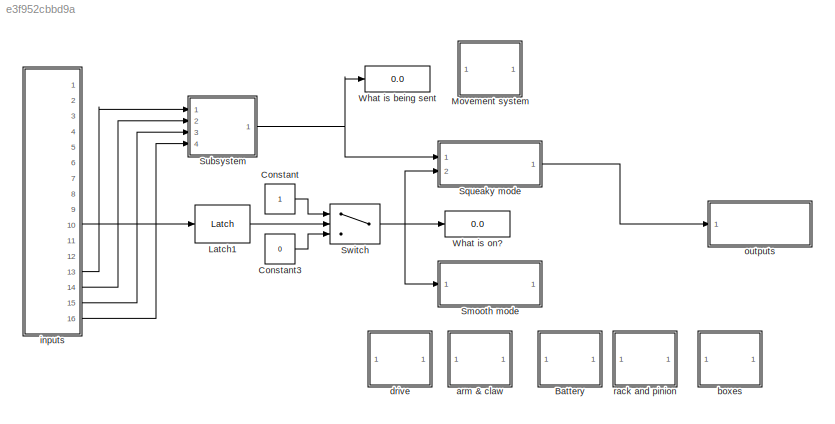
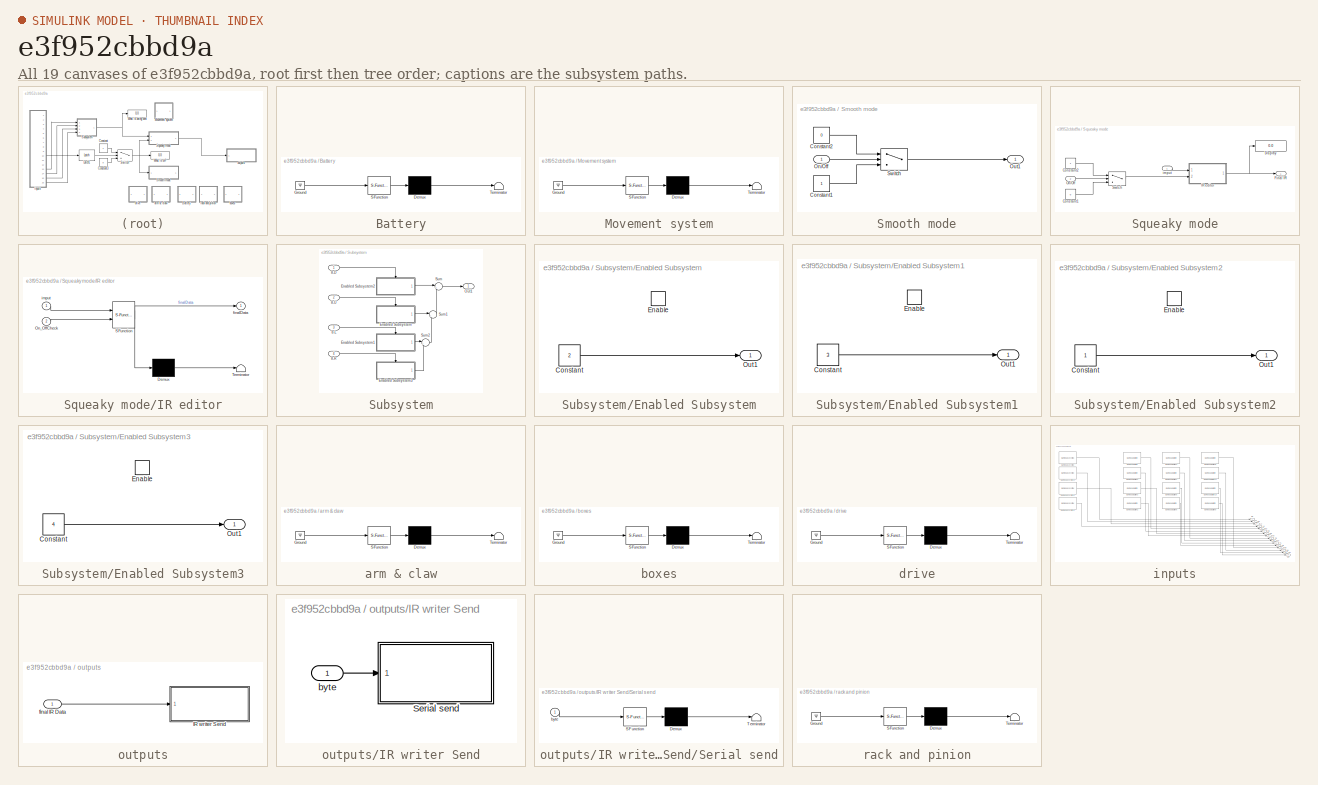
[diagram: thumbnail index - all 19 canvases of the model, root first then tree order]
MODEL slx_e3f952cbbd9a
KIND model
CONFIG AbsTol = auto
CONFIG EnableMultiTasking = off
CONFIG FixedStep = auto
CONFIG MaxStep = auto
CONFIG MinStep = auto
CONFIG RelTol = 1e-3
CONFIG SampleTimeConstraint = Unconstrained
CONFIG SolverName = VariableStepAuto
CONFIG StartTime = 0.0
CONFIG StopTime = 10.0
BLOCK [SubSystem] Battery
  ErrorFcn = Stateflow.Translate.translate
  PermitHierarchicalResolution = ExplicitOnly
  Ports = []
  RequestExecContextInheritance = off
  SFBlockType = Chart
  TreatAsAtomicUnit = on
BLOCK [Demux] Battery/ Demux 
  Outputs = 1
  Ports = [1, 1]
BLOCK [Ground] Battery/ Ground 
BLOCK [S-Function] Battery/ SFunction 
  EnableBusSupport = on
  FunctionName = sf_sfun
  PortCounts = [1 1]
  Ports = [1, 1]
  SFcnIsStateOwnerBlock = off
  SFunctionDeploymentMode = off
  Tag = Stateflow S-Function 7
BLOCK [Terminator] Battery/ Terminator 
BLOCK [Constant] Constant
BLOCK [Constant] Constant3
  Value = 0
BLOCK [Reference] Latch1  REF=RoboticsPlayground/Utilities and Hardware/Latch
  Ports = [1, 1]
  SourceBlock = RoboticsPlayground/Utilities and Hardware/Latch
  SourceProductName = Robotics Playground
BLOCK [SubSystem] Movement system
  ErrorFcn = Stateflow.Translate.translate
  PermitHierarchicalResolution = ExplicitOnly
  Ports = []
  RequestExecContextInheritance = off
  SFBlockType = Chart
  TreatAsAtomicUnit = on
BLOCK [Demux] Movement system/ Demux 
  Outputs = 1
  Ports = [1, 1]
BLOCK [Ground] Movement system/ Ground 
BLOCK [S-Function] Movement system/ SFunction 
  EnableBusSupport = on
  FunctionName = sf_sfun
  PortCounts = [1 1]
  Ports = [1, 1]
  SFcnIsStateOwnerBlock = off
  SFunctionDeploymentMode = off
  Tag = Stateflow S-Function 2
BLOCK [Terminator] Movement system/ Terminator 
BLOCK [SubSystem] Smooth mode
  Ports = [1, 1]
  RequestExecContextInheritance = off
BLOCK [Constant] Smooth mode/Constant1
BLOCK [Constant] Smooth mode/Constant2
  Value = 0
BLOCK [Inport] Smooth mode/On//Off
BLOCK [Outport] Smooth mode/Out1
BLOCK [Switch] Smooth mode/Switch
  Criteria = u2 > Threshold
  InputSameDT = off
  SaturateOnIntegerOverflow = off
BLOCK [SubSystem] Squeaky mode
  Ports = [2, 1]
  RequestExecContextInheritance = off
BLOCK [Constant] Squeaky mode/Constant1
  Value = 0
BLOCK [Constant] Squeaky mode/Constant2
BLOCK [Display] Squeaky mode/Display
  Decimation = 1
  Ports = [1]
BLOCK [Outport] Squeaky mode/Final IR
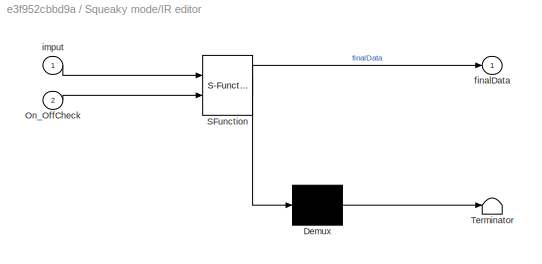
BLOCK [SubSystem] Squeaky mode/IR editor
  ErrorFcn = Stateflow.Translate.translate
  PermitHierarchicalResolution = ExplicitOnly
  Ports = [2, 1]
  RequestExecContextInheritance = off
  SFBlockType = Chart
  TreatAsAtomicUnit = on
BLOCK [Demux] Squeaky mode/IR editor/ Demux 
  Outputs = 1
  Ports = [1, 1]
BLOCK [S-Function] Squeaky mode/IR editor/ SFunction 
  EnableBusSupport = on
  FunctionName = sf_sfun
  PortCounts = [2 2]
  Ports = [2, 2]
  SFcnIsStateOwnerBlock = off
  SFunctionDeploymentMode = off
  Tag = Stateflow S-Function 10
BLOCK [Terminator] Squeaky mode/IR editor/ Terminator 
BLOCK [Inport] Squeaky mode/IR editor/On_OffCheck
  Port = 2
BLOCK [Outport] Squeaky mode/IR editor/finalData
BLOCK [Inport] Squeaky mode/IR editor/imput
BLOCK [Inport] Squeaky mode/On//Off
  Port = 2
BLOCK [Switch] Squeaky mode/Switch
  Criteria = u2 > Threshold
  InputSameDT = off
  SaturateOnIntegerOverflow = off
BLOCK [Inport] Squeaky mode/imput
BLOCK [SubSystem] Subsystem
  Ports = [4, 1]
  RequestExecContextInheritance = off
BLOCK [Inport] Subsystem/8-D
BLOCK [Inport] Subsystem/8-L
  Port = 3
BLOCK [Inport] Subsystem/8-R
  Port = 4
BLOCK [Inport] Subsystem/8-U
  Port = 2
BLOCK [SubSystem] Subsystem/Enabled Subsystem
  Ports = [0, 1, 1]
  RequestExecContextInheritance = off
  TreatAsAtomicUnit = on
BLOCK [Constant] Subsystem/Enabled Subsystem/Constant
  Value = 2
BLOCK [EnablePort] Subsystem/Enabled Subsystem/Enable
  Ports = []
BLOCK [Outport] Subsystem/Enabled Subsystem/Out1
BLOCK [SubSystem] Subsystem/Enabled Subsystem1
  Ports = [0, 1, 1]
  RequestExecContextInheritance = off
  TreatAsAtomicUnit = on
BLOCK [Constant] Subsystem/Enabled Subsystem1/Constant
  Value = 3
BLOCK [EnablePort] Subsystem/Enabled Subsystem1/Enable
  Ports = []
BLOCK [Outport] Subsystem/Enabled Subsystem1/Out1
BLOCK [SubSystem] Subsystem/Enabled Subsystem2
  Ports = [0, 1, 1]
  RequestExecContextInheritance = off
  TreatAsAtomicUnit = on
BLOCK [Constant] Subsystem/Enabled Subsystem2/Constant
BLOCK [EnablePort] Subsystem/Enabled Subsystem2/Enable
  Ports = []
BLOCK [Outport] Subsystem/Enabled Subsystem2/Out1
BLOCK [SubSystem] Subsystem/Enabled Subsystem3
  Ports = [0, 1, 1]
  RequestExecContextInheritance = off
  TreatAsAtomicUnit = on
BLOCK [Constant] Subsystem/Enabled Subsystem3/Constant
  Value = 4
BLOCK [EnablePort] Subsystem/Enabled Subsystem3/Enable
  Ports = []
BLOCK [Outport] Subsystem/Enabled Subsystem3/Out1
BLOCK [Outport] Subsystem/Out1
BLOCK [Sum] Subsystem/Sum
  Inputs = |++
  Ports = [2, 1]
BLOCK [Sum] Subsystem/Sum1
  Inputs = |++
  Ports = [2, 1]
BLOCK [Sum] Subsystem/Sum2
  Inputs = |++
  Ports = [2, 1]
BLOCK [Switch] Switch
  Criteria = u2 ~= 0
  InputSameDT = off
  SaturateOnIntegerOverflow = off
BLOCK [Display] What is being sent
  Decimation = 1
  Ports = [1]
BLOCK [Display] What is on?
  Decimation = 1
  Ports = [1]
BLOCK [SubSystem] arm & claw
  ErrorFcn = Stateflow.Translate.translate
  PermitHierarchicalResolution = ExplicitOnly
  Ports = []
  RequestExecContextInheritance = off
  SFBlockType = Chart
  TreatAsAtomicUnit = on
BLOCK [Demux] arm & claw/ Demux 
  Outputs = 1
  Ports = [1, 1]
BLOCK [Ground] arm & claw/ Ground 
BLOCK [S-Function] arm & claw/ SFunction 
  EnableBusSupport = on
  FunctionName = sf_sfun
  PortCounts = [1 1]
  Ports = [1, 1]
  SFcnIsStateOwnerBlock = off
  SFunctionDeploymentMode = off
  Tag = Stateflow S-Function 6
BLOCK [Terminator] arm & claw/ Terminator 
BLOCK [SubSystem] boxes
  ErrorFcn = Stateflow.Translate.translate
  PermitHierarchicalResolution = ExplicitOnly
  Ports = []
  RequestExecContextInheritance = off
  SFBlockType = Chart
  TreatAsAtomicUnit = on
BLOCK [Demux] boxes/ Demux 
  Outputs = 1
  Ports = [1, 1]
BLOCK [Ground] boxes/ Ground 
BLOCK [S-Function] boxes/ SFunction 
  EnableBusSupport = on
  FunctionName = sf_sfun
  PortCounts = [1 1]
  Ports = [1, 1]
  SFcnIsStateOwnerBlock = off
  SFunctionDeploymentMode = off
  Tag = Stateflow S-Function 9
BLOCK [Terminator] boxes/ Terminator 
BLOCK [SubSystem] drive
  ErrorFcn = Stateflow.Translate.translate
  PermitHierarchicalResolution = ExplicitOnly
  Ports = []
  RequestExecContextInheritance = off
  SFBlockType = Chart
  TreatAsAtomicUnit = on
BLOCK [Demux] drive/ Demux 
  Outputs = 1
  Ports = [1, 1]
BLOCK [Ground] drive/ Ground 
BLOCK [S-Function] drive/ SFunction 
  EnableBusSupport = on
  FunctionName = sf_sfun
  PortCounts = [1 1]
  Ports = [1, 1]
  SFcnIsStateOwnerBlock = off
  SFunctionDeploymentMode = off
  Tag = Stateflow S-Function 5
BLOCK [Terminator] drive/ Terminator 
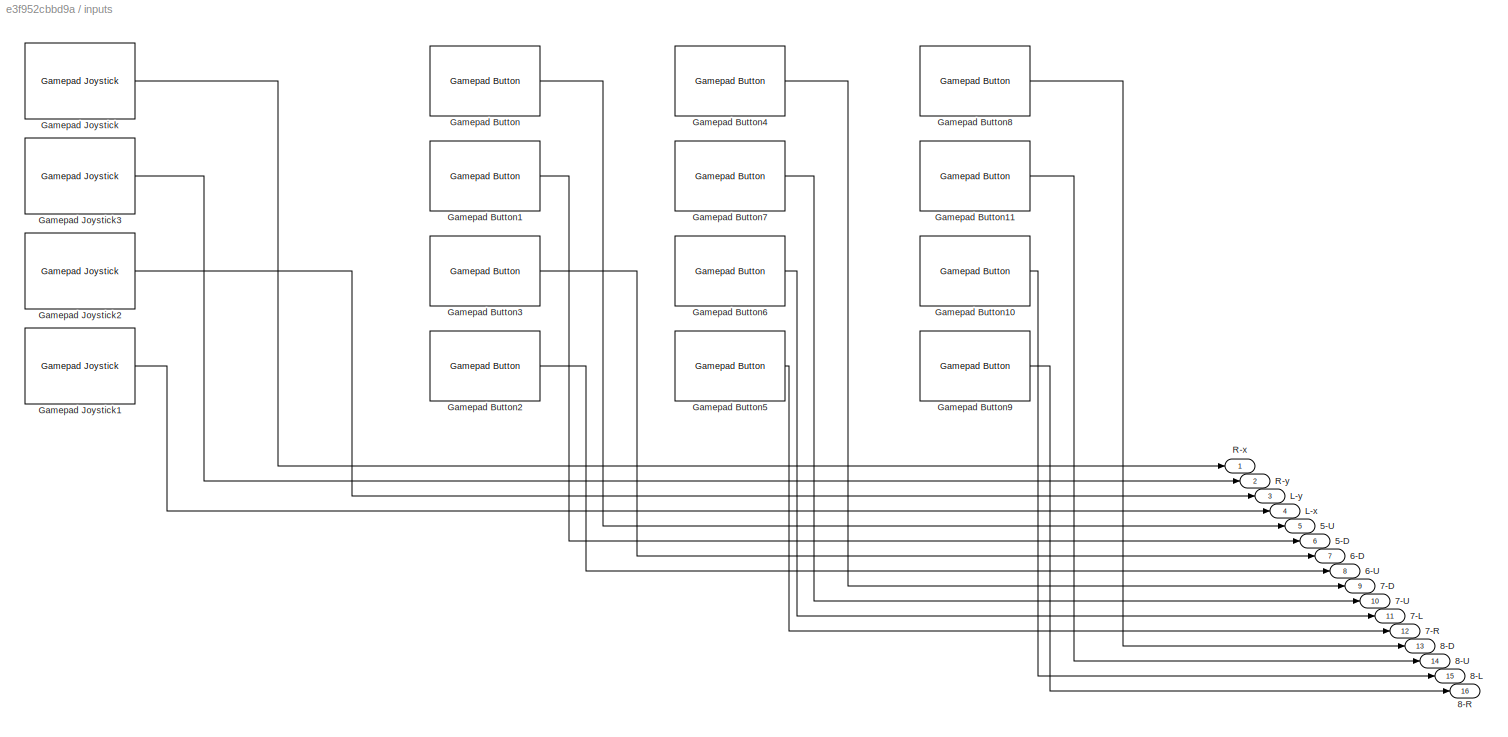
BLOCK [SubSystem] inputs
  Ports = [0, 16]
  RequestExecContextInheritance = off
BLOCK [Outport] inputs/5-D
  Port = 6
BLOCK [Outport] inputs/5-U
  Port = 5
BLOCK [Outport] inputs/6-D
  Port = 7
BLOCK [Outport] inputs/6-U
  Port = 8
BLOCK [Outport] inputs/7-D
  Port = 9
BLOCK [Outport] inputs/7-L
  Port = 11
BLOCK [Outport] inputs/7-R
  Port = 12
BLOCK [Outport] inputs/7-U
  Port = 10
BLOCK [Outport] inputs/8-D
  Port = 13
BLOCK [Outport] inputs/8-L
  Port = 15
BLOCK [Outport] inputs/8-R
  Port = 16
BLOCK [Outport] inputs/8-U
  Port = 14
BLOCK [Reference] inputs/Gamepad Button  REF=vexarmcortexlib/Gamepad/Gamepad Button
  Ports = [0, 1]
  SourceBlock = vexarmcortexlib/Gamepad/Gamepad Button
  SourceProductBaseCode = EC_VEX_MICRO
  SourceType = Gamepad Button
BLOCK [Reference] inputs/Gamepad Button1  REF=vexarmcortexlib/Gamepad/Gamepad Button
  Ports = [0, 1]
  SourceBlock = vexarmcortexlib/Gamepad/Gamepad Button
  SourceProductBaseCode = EC_VEX_MICRO
  SourceType = Gamepad Button
BLOCK [Reference] inputs/Gamepad Button10  REF=vexarmcortexlib/Gamepad/Gamepad Button
  Ports = [0, 1]
  SourceBlock = vexarmcortexlib/Gamepad/Gamepad Button
  SourceProductBaseCode = EC_VEX_MICRO
  SourceType = Gamepad Button
BLOCK [Reference] inputs/Gamepad Button11  REF=vexarmcortexlib/Gamepad/Gamepad Button
  Ports = [0, 1]
  SourceBlock = vexarmcortexlib/Gamepad/Gamepad Button
  SourceProductBaseCode = EC_VEX_MICRO
  SourceType = Gamepad Button
BLOCK [Reference] inputs/Gamepad Button2  REF=vexarmcortexlib/Gamepad/Gamepad Button
  Ports = [0, 1]
  SourceBlock = vexarmcortexlib/Gamepad/Gamepad Button
  SourceProductBaseCode = EC_VEX_MICRO
  SourceType = Gamepad Button
BLOCK [Reference] inputs/Gamepad Button3  REF=vexarmcortexlib/Gamepad/Gamepad Button
  Ports = [0, 1]
  SourceBlock = vexarmcortexlib/Gamepad/Gamepad Button
  SourceProductBaseCode = EC_VEX_MICRO
  SourceType = Gamepad Button
BLOCK [Reference] inputs/Gamepad Button4  REF=vexarmcortexlib/Gamepad/Gamepad Button
  Ports = [0, 1]
  SourceBlock = vexarmcortexlib/Gamepad/Gamepad Button
  SourceProductBaseCode = EC_VEX_MICRO
  SourceType = Gamepad Button
BLOCK [Reference] inputs/Gamepad Button5  REF=vexarmcortexlib/Gamepad/Gamepad Button
  Ports = [0, 1]
  SourceBlock = vexarmcortexlib/Gamepad/Gamepad Button
  SourceProductBaseCode = EC_VEX_MICRO
  SourceType = Gamepad Button
BLOCK [Reference] inputs/Gamepad Button6  REF=vexarmcortexlib/Gamepad/Gamepad Button
  Ports = [0, 1]
  SourceBlock = vexarmcortexlib/Gamepad/Gamepad Button
  SourceProductBaseCode = EC_VEX_MICRO
  SourceType = Gamepad Button
BLOCK [Reference] inputs/Gamepad Button7  REF=vexarmcortexlib/Gamepad/Gamepad Button
  Ports = [0, 1]
  SourceBlock = vexarmcortexlib/Gamepad/Gamepad Button
  SourceProductBaseCode = EC_VEX_MICRO
  SourceType = Gamepad Button
BLOCK [Reference] inputs/Gamepad Button8  REF=vexarmcortexlib/Gamepad/Gamepad Button
  Ports = [0, 1]
  SourceBlock = vexarmcortexlib/Gamepad/Gamepad Button
  SourceProductBaseCode = EC_VEX_MICRO
  SourceType = Gamepad Button
BLOCK [Reference] inputs/Gamepad Button9  REF=vexarmcortexlib/Gamepad/Gamepad Button
  Ports = [0, 1]
  SourceBlock = vexarmcortexlib/Gamepad/Gamepad Button
  SourceProductBaseCode = EC_VEX_MICRO
  SourceType = Gamepad Button
BLOCK [Reference] inputs/Gamepad Joystick  REF=vexarmcortexlib/Gamepad/Gamepad Joystick
  Ports = [0, 1]
  SourceBlock = vexarmcortexlib/Gamepad/Gamepad Joystick
  SourceProductBaseCode = EC_VEX_MICRO
  SourceType = Gamepad Joystick
BLOCK [Reference] inputs/Gamepad Joystick1  REF=vexarmcortexlib/Gamepad/Gamepad Joystick
  Ports = [0, 1]
  SourceBlock = vexarmcortexlib/Gamepad/Gamepad Joystick
  SourceProductBaseCode = EC_VEX_MICRO
  SourceType = Gamepad Joystick
BLOCK [Reference] inputs/Gamepad Joystick2  REF=vexarmcortexlib/Gamepad/Gamepad Joystick
  Ports = [0, 1]
  SourceBlock = vexarmcortexlib/Gamepad/Gamepad Joystick
  SourceProductBaseCode = EC_VEX_MICRO
  SourceType = Gamepad Joystick
BLOCK [Reference] inputs/Gamepad Joystick3  REF=vexarmcortexlib/Gamepad/Gamepad Joystick
  Ports = [0, 1]
  SourceBlock = vexarmcortexlib/Gamepad/Gamepad Joystick
  SourceProductBaseCode = EC_VEX_MICRO
  SourceType = Gamepad Joystick
BLOCK [Outport] inputs/L-x
  Port = 4
BLOCK [Outport] inputs/L-y
  Port = 3
BLOCK [Outport] inputs/R-x
BLOCK [Outport] inputs/R-y
  Port = 2
BLOCK [SubSystem] outputs
  Ports = [1]
  RequestExecContextInheritance = off
BLOCK [SubSystem] outputs/IR writer Send
  Ports = [1]
  RequestExecContextInheritance = off
BLOCK [SubSystem] outputs/IR writer Send/Serial send
  ErrorFcn = Stateflow.Translate.translate
  PermitHierarchicalResolution = ExplicitOnly
  Ports = [1]
  RequestExecContextInheritance = off
  SFBlockType = MATLAB Function
  TreatAsAtomicUnit = on
BLOCK [Demux] outputs/IR writer Send/Serial send/ Demux 
  Outputs = 1
  Ports = [1, 1]
BLOCK [S-Function] outputs/IR writer Send/Serial send/ SFunction 
  EnableBusSupport = on
  FunctionName = sf_sfun
  PortCounts = [1 1]
  Ports = [1, 1]
  SFcnIsStateOwnerBlock = off
  SFunctionDeploymentMode = off
  Tag = Stateflow S-Function 3
BLOCK [Terminator] outputs/IR writer Send/Serial send/ Terminator 
BLOCK [Inport] outputs/IR writer Send/Serial send/byte
BLOCK [Inport] outputs/IR writer Send/byte
  OutDataTypeStr = uint8
  PortDimensions = [1 1]
BLOCK [Inport] outputs/final IR Data
BLOCK [SubSystem] rack and pinion
  ErrorFcn = Stateflow.Translate.translate
  PermitHierarchicalResolution = ExplicitOnly
  Ports = []
  RequestExecContextInheritance = off
  SFBlockType = Chart
  TreatAsAtomicUnit = on
BLOCK [Demux] rack and pinion/ Demux 
  Outputs = 1
  Ports = [1, 1]
BLOCK [Ground] rack and pinion/ Ground 
BLOCK [S-Function] rack and pinion/ SFunction 
  EnableBusSupport = on
  FunctionName = sf_sfun
  PortCounts = [1 1]
  Ports = [1, 1]
  SFcnIsStateOwnerBlock = off
  SFunctionDeploymentMode = off
  Tag = Stateflow S-Function 8
BLOCK [Terminator] rack and pinion/ Terminator 
LINE Constant3:1 -> Switch:3
LINE Constant:1 -> Switch:1
LINE Latch1:1 -> Switch:2
LINE Smooth mode/Constant1:1 -> Smooth mode/Switch:3
LINE Smooth mode/Constant2:1 -> Smooth mode/Switch:1
LINE Smooth mode/On//Off:1 -> Smooth mode/Switch:2
LINE Smooth mode/Switch:1 -> Smooth mode/Out1:1
LINE Squeaky mode/Constant1:1 -> Squeaky mode/Switch:3
LINE Squeaky mode/Constant2:1 -> Squeaky mode/Switch:1
NET Squeaky mode/IR editor:1 -> Squeaky mode/Display:1, Squeaky mode/Final IR:1
LINE Squeaky mode/On//Off:1 -> Squeaky mode/Switch:2
LINE Squeaky mode/Switch:1 -> Squeaky mode/IR editor:2
LINE Squeaky mode/imput:1 -> Squeaky mode/IR editor:1
LINE Squeaky mode:1 -> outputs:1
LINE Subsystem/8-D:1 -> Subsystem/Enabled Subsystem2:enable
LINE Subsystem/8-L:1 -> Subsystem/Enabled Subsystem1:enable
LINE Subsystem/8-R:1 -> Subsystem/Enabled Subsystem3:enable
LINE Subsystem/8-U:1 -> Subsystem/Enabled Subsystem:enable
LINE Subsystem/Enabled Subsystem/Constant:1 -> Subsystem/Enabled Subsystem/Out1:1
LINE Subsystem/Enabled Subsystem1/Constant:1 -> Subsystem/Enabled Subsystem1/Out1:1
LINE Subsystem/Enabled Subsystem1:1 -> Subsystem/Sum2:1
LINE Subsystem/Enabled Subsystem2/Constant:1 -> Subsystem/Enabled Subsystem2/Out1:1
LINE Subsystem/Enabled Subsystem2:1 -> Subsystem/Sum:1
LINE Subsystem/Enabled Subsystem3/Constant:1 -> Subsystem/Enabled Subsystem3/Out1:1
LINE Subsystem/Enabled Subsystem3:1 -> Subsystem/Sum2:2
LINE Subsystem/Enabled Subsystem:1 -> Subsystem/Sum1:1
LINE Subsystem/Sum1:1 -> Subsystem/Sum:2
LINE Subsystem/Sum2:1 -> Subsystem/Sum1:2
LINE Subsystem/Sum:1 -> Subsystem/Out1:1
NET Subsystem:1 -> Squeaky mode:1, What is being sent:1
NET Switch:1 -> Smooth mode:1, Squeaky mode:2, What is on?:1
LINE inputs/Gamepad Button10:1 -> inputs/8-L:1
LINE inputs/Gamepad Button11:1 -> inputs/8-U:1
LINE inputs/Gamepad Button1:1 -> inputs/5-D:1
LINE inputs/Gamepad Button2:1 -> inputs/6-U:1
LINE inputs/Gamepad Button3:1 -> inputs/6-D:1
LINE inputs/Gamepad Button4:1 -> inputs/7-D:1
LINE inputs/Gamepad Button5:1 -> inputs/7-R:1
LINE inputs/Gamepad Button6:1 -> inputs/7-L:1
LINE inputs/Gamepad Button7:1 -> inputs/7-U:1
LINE inputs/Gamepad Button8:1 -> inputs/8-D:1
LINE inputs/Gamepad Button9:1 -> inputs/8-R:1
LINE inputs/Gamepad Button:1 -> inputs/5-U:1
LINE inputs/Gamepad Joystick1:1 -> inputs/L-x:1
LINE inputs/Gamepad Joystick2:1 -> inputs/L-y:1
LINE inputs/Gamepad Joystick3:1 -> inputs/R-y:1
LINE inputs/Gamepad Joystick:1 -> inputs/R-x:1
LINE inputs:10 -> Latch1:1
LINE inputs:13 -> Subsystem:1
LINE inputs:14 -> Subsystem:2
LINE inputs:15 -> Subsystem:3
LINE inputs:16 -> Subsystem:4
LINE outputs/IR writer Send/byte:1 -> outputs/IR writer Send/Serial send:1
LINE outputs/final IR Data:1 -> outputs/IR writer Send:1
note: NET lines group one-source signal fan-out (src -> all destinations, sorted); 1:1 wires keep LINE
CHART Movement system states=0 transitions=0
CHART outputs/IR writer Send/Serial send states=1 transitions=1
  STATE_LABEL 'eML_blk_kernel()'
  STATE_LABEL "SCRIPT:\nfunction fcn(byte)\n% Serial send single byte\n%#codegen\n\n% Config\nport = 'uart1';\nbaud = uint32(9600);\n\npersistent isFirstRun\n\nif coder.target('Rtw')\n    coder.cinclude('API.h');\n    coder.cinclude('string.h');\n    file = coder.opaque('FILE *', port,'HeaderFile','API.h');\n\n    if isempty(isFirstRun)\n        % first time setup\n        isFirstRun = false;\n\n        flags = coder.opaque('uint16...<+127ch>"
CHART drive states=0 transitions=0
CHART arm & claw states=0 transitions=0
CHART Battery states=0 transitions=0
CHART rack and pinion states=0 transitions=0
CHART boxes states=0 transitions=0
CHART Squeaky mode/IR editor states=5 transitions=9
  STATE_LABEL 'Test\nfinalData = 0xF0;\nimput = 0;'
  STATE_LABEL 'CenterD\nfinalData  = 0x66;\nimput = 0;'
  STATE_LABEL 'Initialize\nfinalData =0x00;\n'
  STATE_LABEL 'CenterR\nfinalData = 0xCC;\nimput = 0;'
  STATE_LABEL 'CenterL\nfinalData = 0x5A;\nimput = 0;'
CHART  states=0 transitions=0
CHART  states=0 transitions=0
CHART  states=0 transitions=0
CHART  states=0 transitions=0
CHART  states=0 transitions=0
CHART  states=0 transitions=0
CHART  states=0 transitions=0
CHART  states=0 transitions=0
